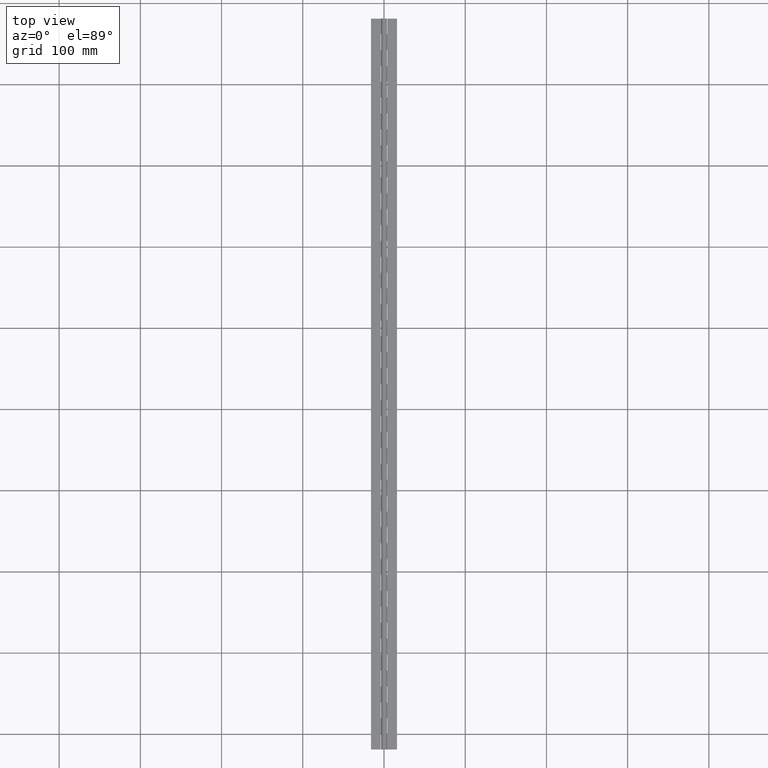
[diagram: clean part render]
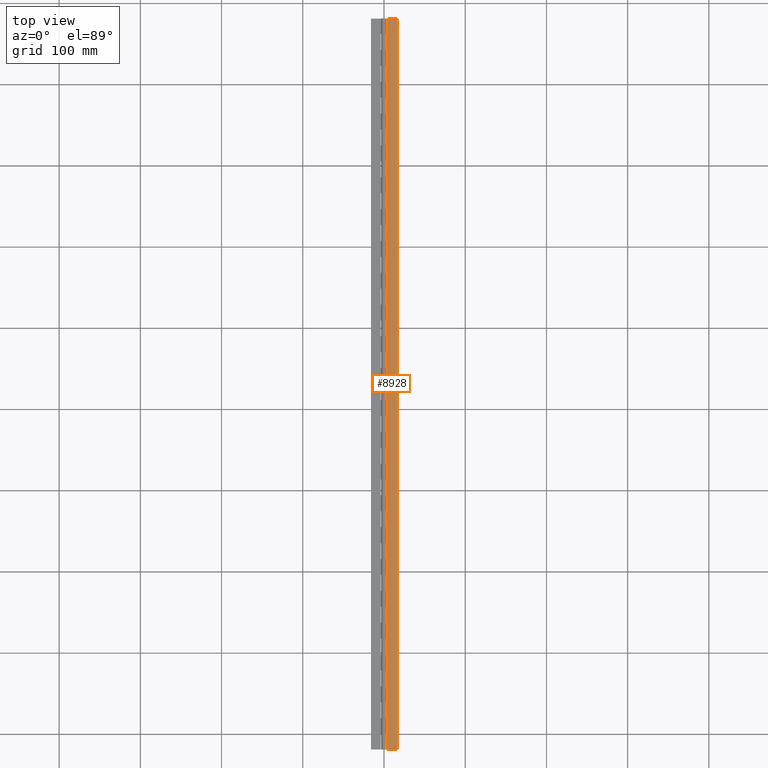
[diagram: same view with one face highlighted and labeled with its STEP entity id]
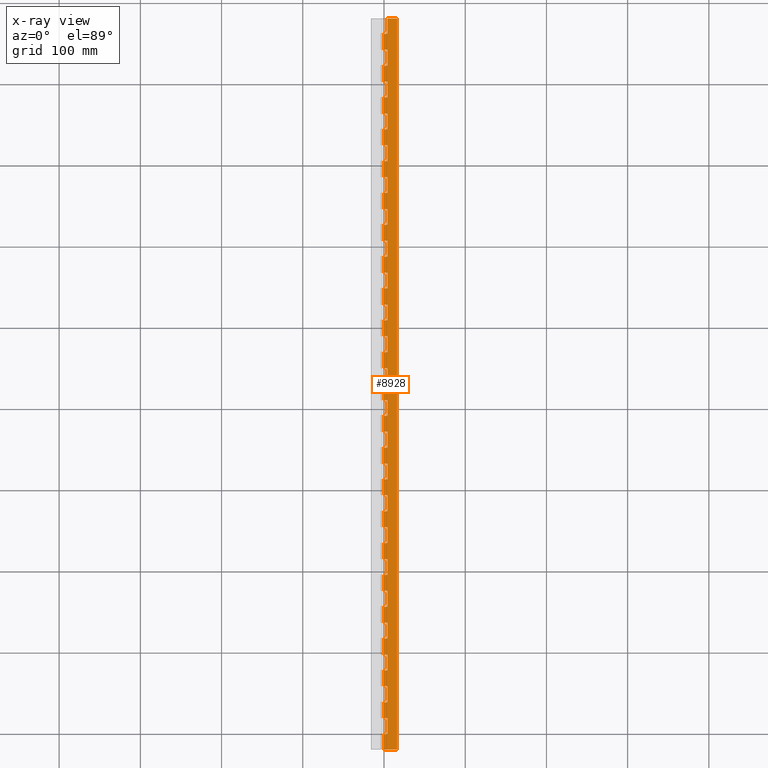
[diagram: x-ray of the same camera — body ghosted, the highlighted face saturated]
A machine part, top view. The second image highlights one B-rep face of the part: STEP entity #8928.
The next image is the same camera in x-ray: the body ghosted, the highlighted face saturated — about 0% of this face is hidden behind the body in this view.
In plain terms, the highlighted planar face has unit normal (-0, 0, -1).
Its self-contained STEP definition (entity closure, byte-faithful):
#41 = VERTEX_POINT ( 'NONE', #8592 ) ;
#58 = VERTEX_POINT ( 'NONE', #480 ) ;
#86 = VECTOR ( 'NONE', #7670, 1000.000000000000000 ) ;
#90 = LINE ( 'NONE', #1574, #9601 ) ;
#121 = EDGE_CURVE ( 'NONE', #3700, #7614, #829, .T. ) ;
#122 = LINE ( 'NONE', #9205, #4140 ) ;
#133 = ORIENTED_EDGE ( 'NONE', *, *, #1622, .T. ) ;
#159 = LINE ( 'NONE', #1134, #5957 ) ;
#166 = CARTESIAN_POINT ( 'NONE',  ( 2.143125705451388300E-016, 803.6000000000001400, -1.750002187502756900 ) ) ;
#193 = EDGE_CURVE ( 'NONE', #6470, #8513, #9643, .T. ) ;
#216 = CARTESIAN_POINT ( 'NONE',  ( 4.000000000000000000, 411.6000000000000800, -1.750002187502757200 ) ) ;
#234 = VECTOR ( 'NONE', #1967, 1000.000000000000000 ) ;
#242 = LINE ( 'NONE', #8952, #6043 ) ;
#243 = VERTEX_POINT ( 'NONE', #9301 ) ;
#247 = VERTEX_POINT ( 'NONE', #9220 ) ;
#248 = VECTOR ( 'NONE', #3665, 1000.000000000000000 ) ;
#265 = ORIENTED_EDGE ( 'NONE', *, *, #3986, .T. ) ;
#272 = CARTESIAN_POINT ( 'NONE',  ( 4.000000000000000000, 686.0000000000000000, -1.750002187502757200 ) ) ;
#280 = CARTESIAN_POINT ( 'NONE',  ( 0.0000000000000000000, 784.0000000000001100, -1.750002187502756900 ) ) ;
#287 = EDGE_CURVE ( 'NONE', #6977, #1509, #2966, .T. ) ;
#293 = CARTESIAN_POINT ( 'NONE',  ( 2.143125705451388300E-016, 686.0000000000000000, -1.750002187502756900 ) ) ;
#302 = VERTEX_POINT ( 'NONE', #4556 ) ;
#333 = LINE ( 'NONE', #9154, #7858 ) ;
#340 = CARTESIAN_POINT ( 'NONE',  ( 16.00000000000000000, -18.80000000000000100, -1.750002187502757400 ) ) ;
#386 = VECTOR ( 'NONE', #4124, 1000.000000000000000 ) ;
#394 = VERTEX_POINT ( 'NONE', #4043 ) ;
#395 = EDGE_CURVE ( 'NONE', #4336, #1188, #242, .T. ) ;
#399 = CARTESIAN_POINT ( 'NONE',  ( 3.999999999999996400, 666.4000000000000900, -1.750002187502756900 ) ) ;
#405 = VERTEX_POINT ( 'NONE', #6868 ) ;
#409 = CARTESIAN_POINT ( 'NONE',  ( 3.999999999999996400, 0.0000000000000000000, -1.750002187502756900 ) ) ;
#411 = CARTESIAN_POINT ( 'NONE',  ( 2.143134577426118000E-016, 862.3999999999999800, -1.750002187502757400 ) ) ;
#428 = LINE ( 'NONE', #280, #8192 ) ;
#442 = VECTOR ( 'NONE', #9223, 1000.000000000000000 ) ;
#449 = VERTEX_POINT ( 'NONE', #8540 ) ;
#456 = CARTESIAN_POINT ( 'NONE',  ( 4.000000000000038200, 862.3999999999999800, -1.750002187502757200 ) ) ;
#465 = LINE ( 'NONE', #4994, #7994 ) ;
#480 = CARTESIAN_POINT ( 'NONE',  ( 4.000000000000000000, 529.2000000000000500, -1.750002187502757200 ) ) ;
#482 = VERTEX_POINT ( 'NONE', #7428 ) ;
#500 = LINE ( 'NONE', #1350, #8267 ) ;
#524 = VERTEX_POINT ( 'NONE', #7082 ) ;
#529 = CARTESIAN_POINT ( 'NONE',  ( 3.999999999999996400, 509.6000000000000800, -1.750002187502756900 ) ) ;
#540 = EDGE_CURVE ( 'NONE', #2277, #405, #820, .T. ) ;
#557 = DIRECTION ( 'NONE',  ( -1.000000000000000000, 0.0000000000000000000, 2.710505431213761400E-017 ) ) ;
#588 = DIRECTION ( 'NONE',  ( -1.770125995894701000E-016, -1.000000000000000000, 4.797936125805255600E-033 ) ) ;
#599 = VECTOR ( 'NONE', #3216, 1000.000000000000000 ) ;
#600 = VERTEX_POINT ( 'NONE', #3016 ) ;
#651 = CARTESIAN_POINT ( 'NONE',  ( 2.143125705451388300E-016, 97.99999999999997200, -1.750002187502756900 ) ) ;
#668 = EDGE_CURVE ( 'NONE', #3999, #5528, #1661, .T. ) ;
#678 = DIRECTION ( 'NONE',  ( -1.770125995894701000E-016, -1.000000000000000000, 4.797936125805255600E-033 ) ) ;
#680 = VECTOR ( 'NONE', #3155, 1000.000000000000000 ) ;
#690 = VECTOR ( 'NONE', #5282, 1000.000000000000000 ) ;
#719 = DIRECTION ( 'NONE',  ( -1.770125995894701000E-016, -1.000000000000000000, 4.797936125805255600E-033 ) ) ;
#720 = VERTEX_POINT ( 'NONE', #9032 ) ;
#727 = VERTEX_POINT ( 'NONE', #5880 ) ;
#732 = LINE ( 'NONE', #4354, #4538 ) ;
#750 = EDGE_CURVE ( 'NONE', #449, #6405, #8825, .T. ) ;
#757 = CARTESIAN_POINT ( 'NONE',  ( 4.000000000000000000, 862.3999999999999800, -1.750002187502757200 ) ) ;
#761 = VERTEX_POINT ( 'NONE', #8870 ) ;
#782 = VECTOR ( 'NONE', #7273, 1000.000000000000000 ) ;
#805 = CARTESIAN_POINT ( 'NONE',  ( 2.143134577426118000E-016, 862.3999999999999800, -1.750002187502757400 ) ) ;
#807 = VECTOR ( 'NONE', #2569, 1000.000000000000000 ) ;
#820 = LINE ( 'NONE', #4459, #6383 ) ;
#829 = LINE ( 'NONE', #2604, #6391 ) ;
#837 = EDGE_CURVE ( 'NONE', #3771, #58, #5929, .T. ) ;
#863 = CARTESIAN_POINT ( 'NONE',  ( 3.999999999999996400, 705.6000000000001400, -1.750002187502756900 ) ) ;
#875 = EDGE_CURVE ( 'NONE', #7614, #5269, #1426, .T. ) ;
#896 = VECTOR ( 'NONE', #8204, 1000.000000000000000 ) ;
#914 = VECTOR ( 'NONE', #7071, 1000.000000000000000 ) ;
#924 = VERTEX_POINT ( 'NONE', #8626 ) ;
#957 = VERTEX_POINT ( 'NONE', #8597 ) ;
#960 = CARTESIAN_POINT ( 'NONE',  ( 4.000000000000000000, 19.60000000000000100, -1.750002187502757200 ) ) ;
#978 = VERTEX_POINT ( 'NONE', #1813 ) ;
#982 = DIRECTION ( 'NONE',  ( 1.000000000000000000, 0.0000000000000000000, -2.710505431213761400E-017 ) ) ;
#1034 = VECTOR ( 'NONE', #3896, 1000.000000000000000 ) ;
#1043 = LINE ( 'NONE', #5637, #8803 ) ;
#1046 = DIRECTION ( 'NONE',  ( -1.770125995894701000E-016, -1.000000000000000000, 4.797936125805255600E-033 ) ) ;
#1054 = CARTESIAN_POINT ( 'NONE',  ( 0.0000000000000000000, 509.6000000000000800, -1.750002187502756900 ) ) ;
#1059 = CARTESIAN_POINT ( 'NONE',  ( 0.0000000000000000000, 411.6000000000000800, -1.750002187502756900 ) ) ;
#1071 = CARTESIAN_POINT ( 'NONE',  ( 4.000000000000000000, 254.8000000000000400, -1.750002187502757200 ) ) ;
#1076 = VERTEX_POINT ( 'NONE', #9166 ) ;
#1100 = DIRECTION ( 'NONE',  ( -1.000000000000000000, 0.0000000000000000000, 2.710505431213761400E-017 ) ) ;
#1134 = CARTESIAN_POINT ( 'NONE',  ( 0.0000000000000000000, 176.4000000000000100, -1.750002187502756900 ) ) ;
#1146 = DIRECTION ( 'NONE',  ( -1.000000000000000000, 0.0000000000000000000, 2.710505431213761400E-017 ) ) ;
#1147 = ORIENTED_EDGE ( 'NONE', *, *, #2010, .T. ) ;
#1152 = LINE ( 'NONE', #8894, #6943 ) ;
#1158 = LINE ( 'NONE', #3949, #8926 ) ;
#1173 = CARTESIAN_POINT ( 'NONE',  ( 16.00000000000000000, -18.80000000000000100, -1.750002187502757400 ) ) ;
#1174 = ORIENTED_EDGE ( 'NONE', *, *, #5268, .T. ) ;
#1188 = VERTEX_POINT ( 'NONE', #7669 ) ;
#1202 = ORIENTED_EDGE ( 'NONE', *, *, #7270, .T. ) ;
#1211 = ORIENTED_EDGE ( 'NONE', *, *, #121, .T. ) ;
#1215 = DIRECTION ( 'NONE',  ( 1.000000000000000000, 0.0000000000000000000, -2.710505431213761400E-017 ) ) ;
#1230 = DIRECTION ( 'NONE',  ( -2.710505431213761400E-017, 0.0000000000000000000, -1.000000000000000000 ) ) ;
#1238 = CARTESIAN_POINT ( 'NONE',  ( 2.143125705451388300E-016, 333.2000000000000500, -1.750002187502756900 ) ) ;
#1244 = ORIENTED_EDGE ( 'NONE', *, *, #7974, .T. ) ;
#1251 = VERTEX_POINT ( 'NONE', #5850 ) ;
#1254 = CARTESIAN_POINT ( 'NONE',  ( 3.999999999999996400, 823.2000000000001600, -1.750002187502756900 ) ) ;
#1257 = CARTESIAN_POINT ( 'NONE',  ( 2.143134577426118000E-016, 862.3999999999999800, -1.750002187502757400 ) ) ;
#1258 = ORIENTED_EDGE ( 'NONE', *, *, #540, .T. ) ;
#1264 = CARTESIAN_POINT ( 'NONE',  ( 0.0000000000000000000, 372.4000000000000900, -1.750002187502756900 ) ) ;
#1279 = ORIENTED_EDGE ( 'NONE', *, *, #9015, .T. ) ;
#1308 = ORIENTED_EDGE ( 'NONE', *, *, #1606, .T. ) ;
#1350 = CARTESIAN_POINT ( 'NONE',  ( 4.000000000000128800, 862.3999999999999800, -1.750002187502757200 ) ) ;
#1384 = VECTOR ( 'NONE', #9466, 1000.000000000000000 ) ;
#1393 = ORIENTED_EDGE ( 'NONE', *, *, #193, .T. ) ;
#1399 = VECTOR ( 'NONE', #6586, 1000.000000000000000 ) ;
#1404 = LINE ( 'NONE', #6224, #6716 ) ;
#1410 = CARTESIAN_POINT ( 'NONE',  ( 2.143125705451388300E-016, 666.4000000000000900, -1.750002187502756900 ) ) ;
#1423 = VERTEX_POINT ( 'NONE', #8068 ) ;
#1426 = LINE ( 'NONE', #5847, #3445 ) ;
#1457 = CARTESIAN_POINT ( 'NONE',  ( 0.0000000000000000000, 803.6000000000001400, -1.750002187502756900 ) ) ;
#1458 = EDGE_CURVE ( 'NONE', #4065, #1956, #6270, .T. ) ;
#1470 = EDGE_CURVE ( 'NONE', #1821, #4065, #6034, .T. ) ;
#1474 = EDGE_CURVE ( 'NONE', #5800, #5591, #8221, .T. ) ;
#1475 = CARTESIAN_POINT ( 'NONE',  ( 3.999999999999996400, 117.6000000000000100, -1.750002187502756900 ) ) ;
#1509 = VERTEX_POINT ( 'NONE', #409 ) ;
#1512 = VECTOR ( 'NONE', #7526, 1000.000000000000000 ) ;
#1513 = DIRECTION ( 'NONE',  ( 1.000000000000000000, 0.0000000000000000000, -2.710505431213761400E-017 ) ) ;
#1518 = CARTESIAN_POINT ( 'NONE',  ( 2.143134577426118000E-016, 862.3999999999999800, -1.750002187502757400 ) ) ;
#1528 = LINE ( 'NONE', #7239, #8797 ) ;
#1561 = CARTESIAN_POINT ( 'NONE',  ( 2.143125705451388300E-016, 470.4000000000000300, -1.750002187502756900 ) ) ;
#1564 = VERTEX_POINT ( 'NONE', #7876 ) ;
#1574 = CARTESIAN_POINT ( 'NONE',  ( 0.0000000000000000000, 58.79999999999996200, -1.750002187502756900 ) ) ;
#1579 = EDGE_CURVE ( 'NONE', #3721, #8358, #1043, .T. ) ;
#1586 = DIRECTION ( 'NONE',  ( -1.770125995894701000E-016, -1.000000000000000000, 4.797936125805255600E-033 ) ) ;
#1590 = ORIENTED_EDGE ( 'NONE', *, *, #4005, .T. ) ;
#1606 = EDGE_CURVE ( 'NONE', #8190, #3613, #2824, .T. ) ;
#1613 = CARTESIAN_POINT ( 'NONE',  ( 4.000000000000094100, 862.3999999999999800, -1.750002187502757200 ) ) ;
#1622 = EDGE_CURVE ( 'NONE', #2367, #8038, #3068, .T. ) ;
#1661 = LINE ( 'NONE', #2057, #9072 ) ;
#1676 = CARTESIAN_POINT ( 'NONE',  ( 4.000000000000072800, 862.3999999999999800, -1.750002187502757200 ) ) ;
#1691 = DIRECTION ( 'NONE',  ( -0.0000000000000000000, -1.000000000000000000, -0.0000000000000000000 ) ) ;
#1693 = VERTEX_POINT ( 'NONE', #5492 ) ;
#1703 = ORIENTED_EDGE ( 'NONE', *, *, #5733, .T. ) ;
#1715 = ORIENTED_EDGE ( 'NONE', *, *, #4815, .T. ) ;
#1721 = CARTESIAN_POINT ( 'NONE',  ( 2.143134577426118000E-016, 862.3999999999999800, -1.750002187502757400 ) ) ;
#1730 = VERTEX_POINT ( 'NONE', #6216 ) ;
#1748 = LINE ( 'NONE', #5863, #5540 ) ;
#1780 = LINE ( 'NONE', #5984, #7548 ) ;
#1792 = CARTESIAN_POINT ( 'NONE',  ( 4.000000000000000000, 842.8000000000000700, -1.750002187502757200 ) ) ;
#1804 = EDGE_CURVE ( 'NONE', #5528, #6164, #1152, .T. ) ;
#1813 = CARTESIAN_POINT ( 'NONE',  ( 4.000000000000000000, 176.4000000000000300, -1.750002187502757200 ) ) ;
#1821 = VERTEX_POINT ( 'NONE', #6791 ) ;
#1837 = CARTESIAN_POINT ( 'NONE',  ( 4.000000000000142100, 862.3999999999999800, -1.750002187502757200 ) ) ;
#1838 = EDGE_CURVE ( 'NONE', #8515, #9399, #4726, .T. ) ;
#1871 = DIRECTION ( 'NONE',  ( 1.000000000000000000, 0.0000000000000000000, -2.710505431213761400E-017 ) ) ;
#1896 = VECTOR ( 'NONE', #9234, 1000.000000000000000 ) ;
#1922 = VERTEX_POINT ( 'NONE', #166 ) ;
#1923 = LINE ( 'NONE', #6431, #9677 ) ;
#1926 = ORIENTED_EDGE ( 'NONE', *, *, #5866, .T. ) ;
#1956 = VERTEX_POINT ( 'NONE', #6336 ) ;
#1957 = ORIENTED_EDGE ( 'NONE', *, *, #7839, .T. ) ;
#1967 = DIRECTION ( 'NONE',  ( -0.0000000000000000000, -1.000000000000000000, -0.0000000000000000000 ) ) ;
#1969 = VECTOR ( 'NONE', #8977, 1000.000000000000000 ) ;
#1973 = DIRECTION ( 'NONE',  ( -1.000000000000000000, 0.0000000000000000000, 2.710505431213761400E-017 ) ) ;
#1975 = ORIENTED_EDGE ( 'NONE', *, *, #3573, .T. ) ;
#2002 = CARTESIAN_POINT ( 'NONE',  ( 2.143134577426118000E-016, 862.3999999999999800, -1.750002187502757400 ) ) ;
#2010 = EDGE_CURVE ( 'NONE', #9253, #1821, #5053, .T. ) ;
#2011 = LINE ( 'NONE', #1059, #9752 ) ;
#2022 = VECTOR ( 'NONE', #9655, 1000.000000000000000 ) ;
#2057 = CARTESIAN_POINT ( 'NONE',  ( 2.143134577426118000E-016, 862.3999999999999800, -1.750002187502757400 ) ) ;
#2092 = DIRECTION ( 'NONE',  ( -0.0000000000000000000, -1.000000000000000000, -0.0000000000000000000 ) ) ;
#2101 = LINE ( 'NONE', #3869, #86 ) ;
#2118 = CARTESIAN_POINT ( 'NONE',  ( 2.143134577426118000E-016, 862.3999999999999800, -1.750002187502757400 ) ) ;
#2147 = DIRECTION ( 'NONE',  ( -0.0000000000000000000, -1.000000000000000000, -0.0000000000000000000 ) ) ;
#2154 = CARTESIAN_POINT ( 'NONE',  ( 4.000000000000100400, 862.3999999999999800, -1.750002187502757200 ) ) ;
#2173 = CARTESIAN_POINT ( 'NONE',  ( 4.000000000000000000, 98.00000000000001400, -1.750002187502757200 ) ) ;
#2177 = EDGE_CURVE ( 'NONE', #1251, #243, #4875, .T. ) ;
#2181 = CARTESIAN_POINT ( 'NONE',  ( 4.000000000000000000, 764.4000000000000900, -1.750002187502757200 ) ) ;
#2219 = ORIENTED_EDGE ( 'NONE', *, *, #3965, .T. ) ;
#2231 = ORIENTED_EDGE ( 'NONE', *, *, #875, .T. ) ;
#2277 = VERTEX_POINT ( 'NONE', #9170 ) ;
#2294 = DIRECTION ( 'NONE',  ( -0.0000000000000000000, -1.000000000000000000, -0.0000000000000000000 ) ) ;
#2337 = CARTESIAN_POINT ( 'NONE',  ( 4.000000000000003600, 862.3999999999999800, -1.750002187502757200 ) ) ;
#2346 = CARTESIAN_POINT ( 'NONE',  ( 2.143125705451388300E-016, 313.5999999999999700, -1.750002187502756900 ) ) ;
#2367 = VERTEX_POINT ( 'NONE', #272 ) ;
#2391 = VECTOR ( 'NONE', #7161, 1000.000000000000000 ) ;
#2417 = CARTESIAN_POINT ( 'NONE',  ( 2.143125705451388300E-016, 78.40000000000002000, -1.750002187502756900 ) ) ;
#2434 = EDGE_CURVE ( 'NONE', #3768, #600, #6413, .T. ) ;
#2443 = EDGE_CURVE ( 'NONE', #1509, #7331, #8391, .T. ) ;
#2467 = EDGE_CURVE ( 'NONE', #7389, #978, #159, .T. ) ;
#2469 = LINE ( 'NONE', #3980, #442 ) ;
#2488 = EDGE_CURVE ( 'NONE', #8761, #3768, #1923, .T. ) ;
#2493 = VECTOR ( 'NONE', #6423, 1000.000000000000000 ) ;
#2499 = DIRECTION ( 'NONE',  ( 1.000000000000000000, 0.0000000000000000000, -2.710505431213761400E-017 ) ) ;
#2505 = LINE ( 'NONE', #2835, #6287 ) ;
#2507 = ORIENTED_EDGE ( 'NONE', *, *, #668, .T. ) ;
#2537 = EDGE_CURVE ( 'NONE', #7815, #6171, #9432, .T. ) ;
#2569 = DIRECTION ( 'NONE',  ( -1.770125995894701000E-016, -1.000000000000000000, 4.797936125805255600E-033 ) ) ;
#2578 = VECTOR ( 'NONE', #1691, 1000.000000000000000 ) ;
#2589 = DIRECTION ( 'NONE',  ( -1.000000000000000000, 0.0000000000000000000, 2.710505431213761400E-017 ) ) ;
#2593 = CARTESIAN_POINT ( 'NONE',  ( 4.000000000000000000, 862.4000000000000900, -1.750002187502756900 ) ) ;
#2604 = CARTESIAN_POINT ( 'NONE',  ( 2.143134577426118000E-016, 862.3999999999999800, -1.750002187502757400 ) ) ;
#2612 = VECTOR ( 'NONE', #6784, 1000.000000000000000 ) ;
#2640 = ORIENTED_EDGE ( 'NONE', *, *, #6817, .T. ) ;
#2642 = EDGE_CURVE ( 'NONE', #1564, #302, #732, .T. ) ;
#2651 = CARTESIAN_POINT ( 'NONE',  ( 4.000000000000000000, 803.6000000000001400, -1.750002187502757200 ) ) ;
#2653 = EDGE_CURVE ( 'NONE', #4650, #5369, #500, .T. ) ;
#2663 = EDGE_CURVE ( 'NONE', #5591, #1922, #6306, .T. ) ;
#2679 = ORIENTED_EDGE ( 'NONE', *, *, #6479, .T. ) ;
#2691 = ORIENTED_EDGE ( 'NONE', *, *, #6527, .T. ) ;
#2694 = VECTOR ( 'NONE', #2499, 1000.000000000000000 ) ;
#2695 = EDGE_CURVE ( 'NONE', #9368, #4650, #8026, .T. ) ;
#2699 = CARTESIAN_POINT ( 'NONE',  ( 2.143134577426118000E-016, 862.3999999999999800, -1.750002187502757400 ) ) ;
#2701 = ORIENTED_EDGE ( 'NONE', *, *, #4520, .T. ) ;
#2714 = VECTOR ( 'NONE', #6554, 1000.000000000000000 ) ;
#2736 = VERTEX_POINT ( 'NONE', #6500 ) ;
#2737 = ORIENTED_EDGE ( 'NONE', *, *, #1804, .T. ) ;
#2746 = VERTEX_POINT ( 'NONE', #9457 ) ;
#2752 = DIRECTION ( 'NONE',  ( -0.0000000000000000000, -1.000000000000000000, -0.0000000000000000000 ) ) ;
#2757 = VECTOR ( 'NONE', #3814, 1000.000000000000000 ) ;
#2768 = VERTEX_POINT ( 'NONE', #5786 ) ;
#2779 = ORIENTED_EDGE ( 'NONE', *, *, #4297, .T. ) ;
#2800 = VECTOR ( 'NONE', #7246, 1000.000000000000000 ) ;
#2801 = DIRECTION ( 'NONE',  ( -1.770125995894701000E-016, -1.000000000000000000, 4.797936125805255600E-033 ) ) ;
#2824 = LINE ( 'NONE', #1837, #807 ) ;
#2835 = CARTESIAN_POINT ( 'NONE',  ( 4.000000000000058600, 862.3999999999999800, -1.750002187502757200 ) ) ;
#2851 = ORIENTED_EDGE ( 'NONE', *, *, #3619, .T. ) ;
#2859 = CARTESIAN_POINT ( 'NONE',  ( 2.143125705451388300E-016, 607.6000000000000200, -1.750002187502756900 ) ) ;
#2861 = DIRECTION ( 'NONE',  ( -1.000000000000000000, 0.0000000000000000000, 2.710505431213761400E-017 ) ) ;
#2898 = CARTESIAN_POINT ( 'NONE',  ( 0.0000000000000000000, 137.1999999999999900, -1.750002187502756900 ) ) ;
#2914 = VERTEX_POINT ( 'NONE', #651 ) ;
#2944 = VECTOR ( 'NONE', #982, 1000.000000000000000 ) ;
#2947 = LINE ( 'NONE', #3659, #5431 ) ;
#2957 = DIRECTION ( 'NONE',  ( -1.770125995894701000E-016, -1.000000000000000000, 4.797936125805255600E-033 ) ) ;
#2966 = LINE ( 'NONE', #3779, #7430 ) ;
#2980 = CARTESIAN_POINT ( 'NONE',  ( 4.000000000000107500, 862.3999999999999800, -1.750002187502757200 ) ) ;
#3009 = VERTEX_POINT ( 'NONE', #6855 ) ;
#3015 = CARTESIAN_POINT ( 'NONE',  ( 2.143134577426118000E-016, 862.3999999999999800, -1.750002187502757400 ) ) ;
#3016 = CARTESIAN_POINT ( 'NONE',  ( 2.143125705451388300E-016, 58.79999999999996200, -1.750002187502756900 ) ) ;
#3023 = DIRECTION ( 'NONE',  ( 1.000000000000000000, 0.0000000000000000000, -2.710505431213761400E-017 ) ) ;
#3025 = VERTEX_POINT ( 'NONE', #2346 ) ;
#3029 = ORIENTED_EDGE ( 'NONE', *, *, #7862, .T. ) ;
#3034 = VERTEX_POINT ( 'NONE', #4640 ) ;
#3062 = ORIENTED_EDGE ( 'NONE', *, *, #3290, .T. ) ;
#3068 = LINE ( 'NONE', #5585, #4841 ) ;
#3118 = ORIENTED_EDGE ( 'NONE', *, *, #287, .T. ) ;
#3123 = ORIENTED_EDGE ( 'NONE', *, *, #837, .T. ) ;
#3128 = EDGE_CURVE ( 'NONE', #8147, #2736, #6981, .T. ) ;
#3135 = ORIENTED_EDGE ( 'NONE', *, *, #1838, .T. ) ;
#3155 = DIRECTION ( 'NONE',  ( 1.000000000000000000, 0.0000000000000000000, -2.710505431213761400E-017 ) ) ;
#3201 = VERTEX_POINT ( 'NONE', #293 ) ;
#3216 = DIRECTION ( 'NONE',  ( -1.000000000000000000, 0.0000000000000000000, 2.710505431213761400E-017 ) ) ;
#3218 = ORIENTED_EDGE ( 'NONE', *, *, #2488, .T. ) ;
#3225 = ORIENTED_EDGE ( 'NONE', *, *, #4918, .T. ) ;
#3285 = DIRECTION ( 'NONE',  ( 1.000000000000000000, 0.0000000000000000000, -2.710505431213761400E-017 ) ) ;
#3288 = VECTOR ( 'NONE', #2294, 1000.000000000000000 ) ;
#3290 = EDGE_CURVE ( 'NONE', #9135, #2914, #4396, .T. ) ;
#3291 = VECTOR ( 'NONE', #8908, 1000.000000000000000 ) ;
#3295 = ORIENTED_EDGE ( 'NONE', *, *, #2443, .T. ) ;
#3298 = DIRECTION ( 'NONE',  ( -0.0000000000000000000, -1.000000000000000000, -0.0000000000000000000 ) ) ;
#3302 = VECTOR ( 'NONE', #1586, 1000.000000000000000 ) ;
#3363 = DIRECTION ( 'NONE',  ( 1.000000000000000000, 0.0000000000000000000, -2.710505431213761400E-017 ) ) ;
#3379 = DIRECTION ( 'NONE',  ( -0.0000000000000000000, -1.000000000000000000, -0.0000000000000000000 ) ) ;
#3389 = ORIENTED_EDGE ( 'NONE', *, *, #6621, .T. ) ;
#3419 = DIRECTION ( 'NONE',  ( -1.000000000000000000, 0.0000000000000000000, 2.710505431213761400E-017 ) ) ;
#3424 = ORIENTED_EDGE ( 'NONE', *, *, #7550, .T. ) ;
#3426 = LINE ( 'NONE', #8788, #1399 ) ;
#3440 = VECTOR ( 'NONE', #4869, 1000.000000000000000 ) ;
#3445 = VECTOR ( 'NONE', #6557, 1000.000000000000000 ) ;
#3446 = ORIENTED_EDGE ( 'NONE', *, *, #8459, .T. ) ;
#3453 = ORIENTED_EDGE ( 'NONE', *, *, #9059, .T. ) ;
#3503 = DIRECTION ( 'NONE',  ( -1.770125995894701000E-016, -1.000000000000000000, 4.797936125805255600E-033 ) ) ;
#3506 = EDGE_CURVE ( 'NONE', #58, #9622, #2505, .T. ) ;
#3525 = LINE ( 'NONE', #8130, #9028 ) ;
#3530 = VERTEX_POINT ( 'NONE', #9584 ) ;
#3552 = EDGE_CURVE ( 'NONE', #5269, #7857, #8001, .T. ) ;
#3570 = VECTOR ( 'NONE', #2589, 1000.000000000000000 ) ;
#3573 = EDGE_CURVE ( 'NONE', #1188, #247, #7781, .T. ) ;
#3587 = VERTEX_POINT ( 'NONE', #1410 ) ;
#3596 = ORIENTED_EDGE ( 'NONE', *, *, #2177, .T. ) ;
#3608 = ORIENTED_EDGE ( 'NONE', *, *, #3128, .T. ) ;
#3610 = EDGE_CURVE ( 'NONE', #1956, #7591, #1780, .T. ) ;
#3611 = ORIENTED_EDGE ( 'NONE', *, *, #4191, .T. ) ;
#3613 = VERTEX_POINT ( 'NONE', #6722 ) ;
#3619 = EDGE_CURVE ( 'NONE', #1922, #5726, #9292, .T. ) ;
#3622 = ORIENTED_EDGE ( 'NONE', *, *, #9675, .T. ) ;
#3623 = CARTESIAN_POINT ( 'NONE',  ( 2.143125705451388300E-016, 294.0000000000000600, -1.750002187502756900 ) ) ;
#3631 = LINE ( 'NONE', #9500, #1384 ) ;
#3659 = CARTESIAN_POINT ( 'NONE',  ( 2.143134577426118000E-016, 862.3999999999999800, -1.750002187502757400 ) ) ;
#3665 = DIRECTION ( 'NONE',  ( -1.770125995894701000E-016, -1.000000000000000000, 4.797936125805255600E-033 ) ) ;
#3679 = CARTESIAN_POINT ( 'NONE',  ( 2.143134577426118000E-016, -18.80000000000000100, -1.750002187502757400 ) ) ;
#3700 = VERTEX_POINT ( 'NONE', #6095 ) ;
#3703 = DIRECTION ( 'NONE',  ( 1.000000000000000000, 0.0000000000000000000, -2.710505431213761400E-017 ) ) ;
#3721 = VERTEX_POINT ( 'NONE', #4637 ) ;
#3751 = CARTESIAN_POINT ( 'NONE',  ( 0.0000000000000000000, 686.0000000000000000, -1.750002187502756900 ) ) ;
#3768 = VERTEX_POINT ( 'NONE', #2417 ) ;
#3771 = VERTEX_POINT ( 'NONE', #3941 ) ;
#3778 = EDGE_CURVE ( 'NONE', #8038, #3587, #122, .T. ) ;
#3779 = CARTESIAN_POINT ( 'NONE',  ( 4.000000000000149200, 862.3999999999999800, -1.750002187502757200 ) ) ;
#3784 = VECTOR ( 'NONE', #4105, 1000.000000000000000 ) ;
#3799 = ORIENTED_EDGE ( 'NONE', *, *, #2467, .T. ) ;
#3814 = DIRECTION ( 'NONE',  ( 1.000000000000000000, 0.0000000000000000000, -2.710505431213761400E-017 ) ) ;
#3828 = DIRECTION ( 'NONE',  ( 1.000000000000000000, 0.0000000000000000000, -2.710505431213761400E-017 ) ) ;
#3865 = DIRECTION ( 'NONE',  ( -0.0000000000000000000, -1.000000000000000000, -0.0000000000000000000 ) ) ;
#3869 = CARTESIAN_POINT ( 'NONE',  ( 0.0000000000000000000, 97.99999999999997200, -1.750002187502756900 ) ) ;
#3872 = ORIENTED_EDGE ( 'NONE', *, *, #2653, .T. ) ;
#3896 = DIRECTION ( 'NONE',  ( -1.000000000000000000, 0.0000000000000000000, 2.710505431213761400E-017 ) ) ;
#3900 = VECTOR ( 'NONE', #1215, 1000.000000000000000 ) ;
#3938 = CARTESIAN_POINT ( 'NONE',  ( 2.143134577426118000E-016, 862.3999999999999800, -1.750002187502757400 ) ) ;
#3941 = CARTESIAN_POINT ( 'NONE',  ( 2.143125705451388300E-016, 529.2000000000000500, -1.750002187502756900 ) ) ;
#3949 = CARTESIAN_POINT ( 'NONE',  ( 0.0000000000000000000, 548.8000000000000700, -1.750002187502756900 ) ) ;
#3965 = EDGE_CURVE ( 'NONE', #6164, #8503, #4741, .T. ) ;
#3968 = DIRECTION ( 'NONE',  ( -0.0000000000000000000, -1.000000000000000000, -0.0000000000000000000 ) ) ;
#3980 = CARTESIAN_POINT ( 'NONE',  ( 0.0000000000000000000, 333.2000000000000500, -1.750002187502756900 ) ) ;
#3984 = LINE ( 'NONE', #3015, #1969 ) ;
#3986 = EDGE_CURVE ( 'NONE', #6166, #3771, #8224, .T. ) ;
#3999 = VERTEX_POINT ( 'NONE', #4207 ) ;
#4001 = LINE ( 'NONE', #9022, #4228 ) ;
#4005 = EDGE_CURVE ( 'NONE', #302, #1730, #7992, .T. ) ;
#4010 = ORIENTED_EDGE ( 'NONE', *, *, #2537, .T. ) ;
#4039 = VERTEX_POINT ( 'NONE', #4248 ) ;
#4041 = ORIENTED_EDGE ( 'NONE', *, *, #9548, .T. ) ;
#4043 = CARTESIAN_POINT ( 'NONE',  ( 3.999999999999996400, 627.2000000000000500, -1.750002187502756900 ) ) ;
#4044 = VERTEX_POINT ( 'NONE', #1238 ) ;
#4065 = VERTEX_POINT ( 'NONE', #8755 ) ;
#4089 = ORIENTED_EDGE ( 'NONE', *, *, #7516, .T. ) ;
#4105 = DIRECTION ( 'NONE',  ( -1.000000000000000000, 0.0000000000000000000, 0.0000000000000000000 ) ) ;
#4124 = DIRECTION ( 'NONE',  ( -1.000000000000000000, 0.0000000000000000000, 2.710505431213761400E-017 ) ) ;
#4128 = LINE ( 'NONE', #4257, #3900 ) ;
#4140 = VECTOR ( 'NONE', #4727, 1000.000000000000000 ) ;
#4161 = CARTESIAN_POINT ( 'NONE',  ( 3.999999999999996400, 313.6000000000000200, -1.750002187502756900 ) ) ;
#4185 = DIRECTION ( 'NONE',  ( -0.0000000000000000000, -1.000000000000000000, -0.0000000000000000000 ) ) ;
#4189 = VERTEX_POINT ( 'NONE', #1173 ) ;
#4191 = EDGE_CURVE ( 'NONE', #3587, #1423, #9280, .T. ) ;
#4207 = CARTESIAN_POINT ( 'NONE',  ( 2.143125705451388300E-016, 784.0000000000001100, -1.750002187502756900 ) ) ;
#4219 = EDGE_CURVE ( 'NONE', #524, #3530, #4128, .T. ) ;
#4228 = VECTOR ( 'NONE', #6790, 1000.000000000000000 ) ;
#4239 = CARTESIAN_POINT ( 'NONE',  ( 0.0000000000000000000, 862.3999999999999800, -1.750002187502756900 ) ) ;
#4248 = CARTESIAN_POINT ( 'NONE',  ( 2.143125705451388300E-016, 274.4000000000000900, -1.750002187502756900 ) ) ;
#4257 = CARTESIAN_POINT ( 'NONE',  ( 0.0000000000000000000, 450.8000000000000700, -1.750002187502756900 ) ) ;
#4268 = CARTESIAN_POINT ( 'NONE',  ( 4.000000000000135000, 862.3999999999999800, -1.750002187502757200 ) ) ;
#4288 = VECTOR ( 'NONE', #2147, 1000.000000000000000 ) ;
#4297 = EDGE_CURVE ( 'NONE', #1730, #2746, #3426, .T. ) ;
#4305 = CARTESIAN_POINT ( 'NONE',  ( 4.000000000000024000, 862.3999999999999800, -1.750002187502757200 ) ) ;
#4313 = ORIENTED_EDGE ( 'NONE', *, *, #4342, .T. ) ;
#4316 = CARTESIAN_POINT ( 'NONE',  ( 0.0000000000000000000, 490.0000000000000600, -1.750002187502756900 ) ) ;
#4321 = ORIENTED_EDGE ( 'NONE', *, *, #9391, .T. ) ;
#4336 = VERTEX_POINT ( 'NONE', #3623 ) ;
#4342 = EDGE_CURVE ( 'NONE', #7331, #5950, #2947, .T. ) ;
#4353 = CARTESIAN_POINT ( 'NONE',  ( 3.999999999999996400, 78.40000000000000600, -1.750002187502756900 ) ) ;
#4354 = CARTESIAN_POINT ( 'NONE',  ( 0.0000000000000000000, 235.1999999999999600, -1.750002187502756900 ) ) ;
#4364 = LINE ( 'NONE', #4449, #8093 ) ;
#4396 = LINE ( 'NONE', #7919, #2391 ) ;
#4412 = CARTESIAN_POINT ( 'NONE',  ( 4.000000000000000000, 58.80000000000000400, -1.750002187502757200 ) ) ;
#4438 = ORIENTED_EDGE ( 'NONE', *, *, #9602, .T. ) ;
#4449 = CARTESIAN_POINT ( 'NONE',  ( 4.000000000000121700, 862.3999999999999800, -1.750002187502757200 ) ) ;
#4453 = CARTESIAN_POINT ( 'NONE',  ( 2.143125705451388300E-016, 705.6000000000001400, -1.750002187502756900 ) ) ;
#4459 = CARTESIAN_POINT ( 'NONE',  ( 0.0000000000000000000, 156.8000000000000400, -1.750002187502756900 ) ) ;
#4477 = ORIENTED_EDGE ( 'NONE', *, *, #4874, .T. ) ;
#4480 = LINE ( 'NONE', #7743, #2694 ) ;
#4485 = ORIENTED_EDGE ( 'NONE', *, *, #3610, .T. ) ;
#4511 = ORIENTED_EDGE ( 'NONE', *, *, #9683, .T. ) ;
#4520 = EDGE_CURVE ( 'NONE', #9399, #5800, #9741, .T. ) ;
#4523 = VERTEX_POINT ( 'NONE', #8336 ) ;
#4538 = VECTOR ( 'NONE', #6622, 1000.000000000000000 ) ;
#4556 = CARTESIAN_POINT ( 'NONE',  ( 2.143125705451388300E-016, 235.1999999999999600, -1.750002187502756900 ) ) ;
#4566 = EDGE_CURVE ( 'NONE', #6171, #3201, #333, .T. ) ;
#4585 = CARTESIAN_POINT ( 'NONE',  ( 4.000000000000000000, 646.8000000000000700, -1.750002187502757200 ) ) ;
#4627 = VERTEX_POINT ( 'NONE', #216 ) ;
#4637 = CARTESIAN_POINT ( 'NONE',  ( 3.999999999999996400, 470.4000000000000300, -1.750002187502756900 ) ) ;
#4640 = CARTESIAN_POINT ( 'NONE',  ( 2.143125705451388300E-016, 196.0000000000000600, -1.750002187502756900 ) ) ;
#4643 = ORIENTED_EDGE ( 'NONE', *, *, #7879, .T. ) ;
#4650 = VERTEX_POINT ( 'NONE', #5541 ) ;
#4656 = CARTESIAN_POINT ( 'NONE',  ( 3.999999999999996400, 392.0000000000000600, -1.750002187502756900 ) ) ;
#4686 = ORIENTED_EDGE ( 'NONE', *, *, #9221, .T. ) ;
#4689 = EDGE_CURVE ( 'NONE', #1076, #4915, #6934, .T. ) ;
#4726 = LINE ( 'NONE', #5452, #2944 ) ;
#4727 = DIRECTION ( 'NONE',  ( -1.000000000000000000, 0.0000000000000000000, 2.710505431213761400E-017 ) ) ;
#4741 = LINE ( 'NONE', #4910, #2493 ) ;
#4773 = CARTESIAN_POINT ( 'NONE',  ( 2.143125705451388300E-016, 842.8000000000000700, -1.750002187502756900 ) ) ;
#4789 = CARTESIAN_POINT ( 'NONE',  ( 0.0000000000000000000, 646.8000000000000700, -1.750002187502756900 ) ) ;
#4808 = DIRECTION ( 'NONE',  ( -1.000000000000000000, 0.0000000000000000000, 2.710505431213761400E-017 ) ) ;
#4815 = EDGE_CURVE ( 'NONE', #5369, #9135, #4001, .T. ) ;
#4822 = LINE ( 'NONE', #456, #2800 ) ;
#4826 = LINE ( 'NONE', #3938, #2578 ) ;
#4830 = EDGE_CURVE ( 'NONE', #243, #482, #7750, .T. ) ;
#4841 = VECTOR ( 'NONE', #7074, 1000.000000000000000 ) ;
#4856 = LINE ( 'NONE', #3751, #2612 ) ;
#4869 = DIRECTION ( 'NONE',  ( 1.000000000000000000, 0.0000000000000000000, -2.710505431213761400E-017 ) ) ;
#4874 = EDGE_CURVE ( 'NONE', #4039, #3009, #5286, .T. ) ;
#4875 = LINE ( 'NONE', #9034, #2757 ) ;
#4882 = VERTEX_POINT ( 'NONE', #9101 ) ;
#4885 = VECTOR ( 'NONE', #3379, 1000.000000000000000 ) ;
#4891 = EDGE_CURVE ( 'NONE', #4523, #8625, #5047, .T. ) ;
#4893 = CARTESIAN_POINT ( 'NONE',  ( 0.0000000000000000000, 0.0000000000000000000, -1.750002187502756900 ) ) ;
#4905 = ORIENTED_EDGE ( 'NONE', *, *, #1458, .T. ) ;
#4910 = CARTESIAN_POINT ( 'NONE',  ( 4.000000000000017800, 862.3999999999999800, -1.750002187502757200 ) ) ;
#4915 = VERTEX_POINT ( 'NONE', #9155 ) ;
#4917 = ORIENTED_EDGE ( 'NONE', *, *, #4830, .T. ) ;
#4918 = EDGE_CURVE ( 'NONE', #6405, #41, #4826, .T. ) ;
#4925 = CARTESIAN_POINT ( 'NONE',  ( 0.0000000000000000000, 274.4000000000000900, -1.750002187502756900 ) ) ;
#4927 = ORIENTED_EDGE ( 'NONE', *, *, #4689, .F. ) ;
#4944 = DIRECTION ( 'NONE',  ( -1.000000000000000000, 0.0000000000000000000, 2.710505431213761400E-017 ) ) ;
#4994 = CARTESIAN_POINT ( 'NONE',  ( 16.00000000000000000, 862.3999999999999800, -1.750002187502757400 ) ) ;
#5047 = LINE ( 'NONE', #1613, #8780 ) ;
#5052 = VERTEX_POINT ( 'NONE', #1071 ) ;
#5053 = LINE ( 'NONE', #5212, #1034 ) ;
#5068 = LINE ( 'NONE', #1257, #6601 ) ;
#5090 = VECTOR ( 'NONE', #3419, 1000.000000000000000 ) ;
#5133 = CARTESIAN_POINT ( 'NONE',  ( 0.0000000000000000000, 431.2000000000001000, -1.750002187502756900 ) ) ;
#5177 = DIRECTION ( 'NONE',  ( -1.770125995894701000E-016, -1.000000000000000000, 4.797936125805255600E-033 ) ) ;
#5194 = CARTESIAN_POINT ( 'NONE',  ( 2.143134577426118000E-016, 19.59999999999995200, -1.750002187502757400 ) ) ;
#5208 = ORIENTED_EDGE ( 'NONE', *, *, #750, .T. ) ;
#5209 = ORIENTED_EDGE ( 'NONE', *, *, #4891, .T. ) ;
#5212 = CARTESIAN_POINT ( 'NONE',  ( 0.0000000000000000000, 392.0000000000000600, -1.750002187502756900 ) ) ;
#5268 = EDGE_CURVE ( 'NONE', #3613, #720, #7570, .T. ) ;
#5269 = VERTEX_POINT ( 'NONE', #8854 ) ;
#5276 = ORIENTED_EDGE ( 'NONE', *, *, #8499, .T. ) ;
#5282 = DIRECTION ( 'NONE',  ( 0.0000000000000000000, -1.000000000000000000, 0.0000000000000000000 ) ) ;
#5286 = LINE ( 'NONE', #805, #9023 ) ;
#5355 = VERTEX_POINT ( 'NONE', #5194 ) ;
#5366 = ORIENTED_EDGE ( 'NONE', *, *, #2663, .T. ) ;
#5369 = VERTEX_POINT ( 'NONE', #1475 ) ;
#5372 = ORIENTED_EDGE ( 'NONE', *, *, #1474, .T. ) ;
#5382 = ORIENTED_EDGE ( 'NONE', *, *, #8668, .T. ) ;
#5431 = VECTOR ( 'NONE', #8892, 1000.000000000000000 ) ;
#5433 = CARTESIAN_POINT ( 'NONE',  ( 2.143125705451388300E-016, 764.4000000000000900, -1.750002187502756900 ) ) ;
#5447 = LINE ( 'NONE', #7098, #3440 ) ;
#5452 = CARTESIAN_POINT ( 'NONE',  ( 0.0000000000000000000, 842.8000000000000700, -1.750002187502756900 ) ) ;
#5464 = DIRECTION ( 'NONE',  ( -1.000000000000000000, 0.0000000000000000000, 2.710505431213761400E-017 ) ) ;
#5476 = DIRECTION ( 'NONE',  ( -1.770125995894701000E-016, -1.000000000000000000, 4.797936125805255600E-033 ) ) ;
#5492 = CARTESIAN_POINT ( 'NONE',  ( 3.999999999999996400, 784.0000000000001100, -1.750002187502756900 ) ) ;
#5528 = VERTEX_POINT ( 'NONE', #5433 ) ;
#5538 = VECTOR ( 'NONE', #719, 1000.000000000000000 ) ;
#5540 = VECTOR ( 'NONE', #2092, 1000.000000000000000 ) ;
#5541 = CARTESIAN_POINT ( 'NONE',  ( 4.000000000000000000, 137.2000000000000200, -1.750002187502757200 ) ) ;
#5583 = LINE ( 'NONE', #1054, #3570 ) ;
#5585 = CARTESIAN_POINT ( 'NONE',  ( 4.000000000000031100, 862.3999999999999800, -1.750002187502757200 ) ) ;
#5591 = VERTEX_POINT ( 'NONE', #9246 ) ;
#5637 = CARTESIAN_POINT ( 'NONE',  ( 0.0000000000000000000, 470.4000000000000300, -1.750002187502756900 ) ) ;
#5659 = DIRECTION ( 'NONE',  ( -0.0000000000000000000, -1.000000000000000000, -0.0000000000000000000 ) ) ;
#5660 = EDGE_CURVE ( 'NONE', #9622, #8147, #5583, .T. ) ;
#5677 = VECTOR ( 'NONE', #7592, 1000.000000000000000 ) ;
#5688 = VECTOR ( 'NONE', #9471, 1000.000000000000000 ) ;
#5691 = LINE ( 'NONE', #5858, #7674 ) ;
#5696 = CARTESIAN_POINT ( 'NONE',  ( 2.143125705451388300E-016, 352.8000000000001300, -1.750002187502756900 ) ) ;
#5718 = EDGE_CURVE ( 'NONE', #7857, #957, #8830, .T. ) ;
#5726 = VERTEX_POINT ( 'NONE', #2651 ) ;
#5733 = EDGE_CURVE ( 'NONE', #247, #4039, #6862, .T. ) ;
#5750 = VERTEX_POINT ( 'NONE', #5696 ) ;
#5762 = PLANE ( 'NONE',  #6626 ) ;
#5779 = ORIENTED_EDGE ( 'NONE', *, *, #2642, .T. ) ;
#5786 = CARTESIAN_POINT ( 'NONE',  ( 4.000000000000000000, 725.2000000000000500, -1.750002187502757200 ) ) ;
#5800 = VERTEX_POINT ( 'NONE', #1254 ) ;
#5812 = ORIENTED_EDGE ( 'NONE', *, *, #7673, .T. ) ;
#5816 = VECTOR ( 'NONE', #3968, 1000.000000000000000 ) ;
#5827 = VECTOR ( 'NONE', #3703, 1000.000000000000000 ) ;
#5846 = ORIENTED_EDGE ( 'NONE', *, *, #1579, .T. ) ;
#5847 = CARTESIAN_POINT ( 'NONE',  ( 0.0000000000000000000, 607.6000000000000200, -1.750002187502756900 ) ) ;
#5850 = CARTESIAN_POINT ( 'NONE',  ( 2.143125705451388300E-016, 568.3999999999999800, -1.750002187502756900 ) ) ;
#5858 = CARTESIAN_POINT ( 'NONE',  ( 0.0000000000000000000, 744.8000000000001800, -1.750002187502756900 ) ) ;
#5863 = CARTESIAN_POINT ( 'NONE',  ( 2.143134577426118000E-016, 862.3999999999999800, -1.750002187502757400 ) ) ;
#5864 = CARTESIAN_POINT ( 'NONE',  ( 3.999999999999996400, 352.8000000000000700, -1.750002187502756900 ) ) ;
#5866 = EDGE_CURVE ( 'NONE', #8503, #727, #5691, .T. ) ;
#5879 = CARTESIAN_POINT ( 'NONE',  ( 4.000000000000065700, 862.3999999999999800, -1.750002187502757200 ) ) ;
#5880 = CARTESIAN_POINT ( 'NONE',  ( 2.143125705451388300E-016, 744.8000000000001800, -1.750002187502756900 ) ) ;
#5929 = LINE ( 'NONE', #8757, #5688 ) ;
#5930 = ORIENTED_EDGE ( 'NONE', *, *, #5954, .T. ) ;
#5950 = VERTEX_POINT ( 'NONE', #3679 ) ;
#5954 = EDGE_CURVE ( 'NONE', #2746, #761, #8705, .T. ) ;
#5957 = VECTOR ( 'NONE', #1871, 1000.000000000000000 ) ;
#5984 = CARTESIAN_POINT ( 'NONE',  ( 4.000000000000087000, 862.3999999999999800, -1.750002187502757200 ) ) ;
#5996 = CARTESIAN_POINT ( 'NONE',  ( 2.143125705451388300E-016, 117.6000000000000400, -1.750002187502756900 ) ) ;
#6027 = VECTOR ( 'NONE', #6902, 1000.000000000000000 ) ;
#6034 = LINE ( 'NONE', #2002, #7988 ) ;
#6043 = VECTOR ( 'NONE', #3023, 1000.000000000000000 ) ;
#6065 = ORIENTED_EDGE ( 'NONE', *, *, #2434, .T. ) ;
#6095 = CARTESIAN_POINT ( 'NONE',  ( 2.143125705451388300E-016, 627.2000000000000500, -1.750002187502756900 ) ) ;
#6106 = ORIENTED_EDGE ( 'NONE', *, *, #6281, .T. ) ;
#6119 = CARTESIAN_POINT ( 'NONE',  ( 2.143125705451388300E-016, 176.4000000000000100, -1.750002187502756900 ) ) ;
#6164 = VERTEX_POINT ( 'NONE', #2181 ) ;
#6166 = VERTEX_POINT ( 'NONE', #9641 ) ;
#6171 = VERTEX_POINT ( 'NONE', #4453 ) ;
#6206 = CARTESIAN_POINT ( 'NONE',  ( 0.0000000000000000000, 254.8000000000000400, -1.750002187502756900 ) ) ;
#6212 = EDGE_CURVE ( 'NONE', #3201, #2367, #4856, .T. ) ;
#6214 = ORIENTED_EDGE ( 'NONE', *, *, #8100, .F. ) ;
#6216 = CARTESIAN_POINT ( 'NONE',  ( 2.143125705451388300E-016, 215.6000000000000200, -1.750002187502756900 ) ) ;
#6224 = CARTESIAN_POINT ( 'NONE',  ( 0.0000000000000000000, 627.2000000000000500, -1.750002187502756900 ) ) ;
#6256 = VECTOR ( 'NONE', #5476, 1000.000000000000000 ) ;
#6259 = VERTEX_POINT ( 'NONE', #4585 ) ;
#6270 = LINE ( 'NONE', #1264, #2714 ) ;
#6272 = VECTOR ( 'NONE', #4185, 1000.000000000000000 ) ;
#6281 = EDGE_CURVE ( 'NONE', #7591, #5750, #9637, .T. ) ;
#6287 = VECTOR ( 'NONE', #2801, 1000.000000000000000 ) ;
#6292 = ORIENTED_EDGE ( 'NONE', *, *, #9377, .T. ) ;
#6306 = LINE ( 'NONE', #7393, #4288 ) ;
#6336 = CARTESIAN_POINT ( 'NONE',  ( 4.000000000000000000, 372.4000000000000900, -1.750002187502757200 ) ) ;
#6349 = LINE ( 'NONE', #4305, #782 ) ;
#6383 = VECTOR ( 'NONE', #7575, 1000.000000000000000 ) ;
#6391 = VECTOR ( 'NONE', #3298, 1000.000000000000000 ) ;
#6405 = VERTEX_POINT ( 'NONE', #7006 ) ;
#6413 = LINE ( 'NONE', #8602, #4885 ) ;
#6416 = ORIENTED_EDGE ( 'NONE', *, *, #9116, .T. ) ;
#6423 = DIRECTION ( 'NONE',  ( -1.770125995894701000E-016, -1.000000000000000000, 4.797936125805255600E-033 ) ) ;
#6428 = EDGE_CURVE ( 'NONE', #1423, #6259, #8468, .T. ) ;
#6431 = CARTESIAN_POINT ( 'NONE',  ( 0.0000000000000000000, 78.40000000000002000, -1.750002187502756900 ) ) ;
#6456 = LINE ( 'NONE', #7028, #8905 ) ;
#6470 = VERTEX_POINT ( 'NONE', #2593 ) ;
#6479 = EDGE_CURVE ( 'NONE', #41, #4627, #2011, .T. ) ;
#6484 = ORIENTED_EDGE ( 'NONE', *, *, #4219, .T. ) ;
#6489 = VECTOR ( 'NONE', #3285, 1000.000000000000000 ) ;
#6491 = EDGE_CURVE ( 'NONE', #4189, #5950, #7993, .T. ) ;
#6500 = CARTESIAN_POINT ( 'NONE',  ( 2.143125705451388300E-016, 490.0000000000000600, -1.750002187502756900 ) ) ;
#6507 = ORIENTED_EDGE ( 'NONE', *, *, #395, .T. ) ;
#6516 = DIRECTION ( 'NONE',  ( -1.000000000000000000, 0.0000000000000000000, 2.710505431213761400E-017 ) ) ;
#6522 = DIRECTION ( 'NONE',  ( -1.000000000000000000, 0.0000000000000000000, 2.710505431213761400E-017 ) ) ;
#6527 = EDGE_CURVE ( 'NONE', #727, #4882, #9508, .T. ) ;
#6554 = DIRECTION ( 'NONE',  ( 1.000000000000000000, 0.0000000000000000000, -2.710505431213761400E-017 ) ) ;
#6557 = DIRECTION ( 'NONE',  ( 1.000000000000000000, 0.0000000000000000000, -2.710505431213761400E-017 ) ) ;
#6577 = VECTOR ( 'NONE', #3503, 1000.000000000000000 ) ;
#6586 = DIRECTION ( 'NONE',  ( 1.000000000000000000, 0.0000000000000000000, -2.710505431213761400E-017 ) ) ;
#6601 = VECTOR ( 'NONE', #7281, 1000.000000000000000 ) ;
#6621 = EDGE_CURVE ( 'NONE', #8513, #8515, #5068, .T. ) ;
#6622 = DIRECTION ( 'NONE',  ( -1.000000000000000000, 0.0000000000000000000, 2.710505431213761400E-017 ) ) ;
#6626 = AXIS2_PLACEMENT_3D ( 'NONE', #4239, #1230, #6516 ) ;
#6677 = ORIENTED_EDGE ( 'NONE', *, *, #9567, .T. ) ;
#6705 = FACE_OUTER_BOUND ( 'NONE', #8909, .T. ) ;
#6716 = VECTOR ( 'NONE', #8443, 1000.000000000000000 ) ;
#6722 = CARTESIAN_POINT ( 'NONE',  ( 3.999999999999996400, 39.20000000000000300, -1.750002187502756900 ) ) ;
#6740 = VECTOR ( 'NONE', #5177, 1000.000000000000000 ) ;
#6784 = DIRECTION ( 'NONE',  ( 1.000000000000000000, 0.0000000000000000000, -2.710505431213761400E-017 ) ) ;
#6790 = DIRECTION ( 'NONE',  ( -1.000000000000000000, 0.0000000000000000000, 2.710505431213761400E-017 ) ) ;
#6791 = CARTESIAN_POINT ( 'NONE',  ( 2.143125705451388300E-016, 392.0000000000000600, -1.750002187502756900 ) ) ;
#6817 = EDGE_CURVE ( 'NONE', #1076, #6470, #8677, .T. ) ;
#6841 = CARTESIAN_POINT ( 'NONE',  ( 0.0000000000000000000, 352.8000000000001300, -1.750002187502756900 ) ) ;
#6855 = CARTESIAN_POINT ( 'NONE',  ( 2.143125705451388300E-016, 254.8000000000000400, -1.750002187502756900 ) ) ;
#6862 = LINE ( 'NONE', #4925, #8589 ) ;
#6868 = CARTESIAN_POINT ( 'NONE',  ( 2.143125705451388300E-016, 156.8000000000000400, -1.750002187502756900 ) ) ;
#6900 = EDGE_CURVE ( 'NONE', #8358, #524, #7980, .T. ) ;
#6902 = DIRECTION ( 'NONE',  ( -0.0000000000000000000, -1.000000000000000000, -0.0000000000000000000 ) ) ;
#6927 = VECTOR ( 'NONE', #8776, 1000.000000000000000 ) ;
#6934 = LINE ( 'NONE', #7817, #914 ) ;
#6943 = VECTOR ( 'NONE', #1513, 1000.000000000000000 ) ;
#6977 = VERTEX_POINT ( 'NONE', #960 ) ;
#6981 = LINE ( 'NONE', #1721, #5816 ) ;
#6992 = CARTESIAN_POINT ( 'NONE',  ( 3.999999999999996400, 744.8000000000001800, -1.750002187502756900 ) ) ;
#6998 = ORIENTED_EDGE ( 'NONE', *, *, #7341, .T. ) ;
#7006 = CARTESIAN_POINT ( 'NONE',  ( 2.143125705451388300E-016, 431.2000000000001000, -1.750002187502756900 ) ) ;
#7028 = CARTESIAN_POINT ( 'NONE',  ( 2.143134577426118000E-016, 862.3999999999999800, -1.750002187502757400 ) ) ;
#7071 = DIRECTION ( 'NONE',  ( 1.000000000000000000, 0.0000000000000000000, 0.0000000000000000000 ) ) ;
#7074 = DIRECTION ( 'NONE',  ( -1.770125995894701000E-016, -1.000000000000000000, 4.797936125805255600E-033 ) ) ;
#7082 = CARTESIAN_POINT ( 'NONE',  ( 2.143125705451388300E-016, 450.8000000000000700, -1.750002187502756900 ) ) ;
#7098 = CARTESIAN_POINT ( 'NONE',  ( 0.0000000000000000000, 725.2000000000000500, -1.750002187502756900 ) ) ;
#7122 = ORIENTED_EDGE ( 'NONE', *, *, #9744, .T. ) ;
#7150 = CARTESIAN_POINT ( 'NONE',  ( 2.143134577426118000E-016, 862.3999999999999800, -1.750002187502757400 ) ) ;
#7161 = DIRECTION ( 'NONE',  ( -0.0000000000000000000, -1.000000000000000000, -0.0000000000000000000 ) ) ;
#7239 = CARTESIAN_POINT ( 'NONE',  ( 2.143134577426118000E-016, 862.3999999999999800, -1.750002187502757400 ) ) ;
#7246 = DIRECTION ( 'NONE',  ( -1.770125995894701000E-016, -1.000000000000000000, 4.797936125805255600E-033 ) ) ;
#7270 = EDGE_CURVE ( 'NONE', #5726, #1693, #7513, .T. ) ;
#7273 = DIRECTION ( 'NONE',  ( -1.770125995894701000E-016, -1.000000000000000000, 4.797936125805255600E-033 ) ) ;
#7278 = LINE ( 'NONE', #1518, #3288 ) ;
#7281 = DIRECTION ( 'NONE',  ( -0.0000000000000000000, -1.000000000000000000, -0.0000000000000000000 ) ) ;
#7311 = VECTOR ( 'NONE', #8200, 1000.000000000000000 ) ;
#7331 = VERTEX_POINT ( 'NONE', #8250 ) ;
#7337 = VECTOR ( 'NONE', #2861, 1000.000000000000000 ) ;
#7340 = ORIENTED_EDGE ( 'NONE', *, *, #7902, .T. ) ;
#7341 = EDGE_CURVE ( 'NONE', #405, #9368, #7278, .T. ) ;
#7374 = DIRECTION ( 'NONE',  ( -0.0000000000000000000, -1.000000000000000000, -0.0000000000000000000 ) ) ;
#7385 = VECTOR ( 'NONE', #588, 1000.000000000000000 ) ;
#7389 = VERTEX_POINT ( 'NONE', #6119 ) ;
#7393 = CARTESIAN_POINT ( 'NONE',  ( 2.143134577426118000E-016, 862.3999999999999800, -1.750002187502757400 ) ) ;
#7428 = CARTESIAN_POINT ( 'NONE',  ( 3.999999999999996400, 548.8000000000000700, -1.750002187502756900 ) ) ;
#7430 = VECTOR ( 'NONE', #1046, 1000.000000000000000 ) ;
#7451 = EDGE_CURVE ( 'NONE', #2914, #9091, #2101, .T. ) ;
#7513 = LINE ( 'NONE', #8205, #5538 ) ;
#7516 = EDGE_CURVE ( 'NONE', #8625, #3025, #3631, .T. ) ;
#7526 = DIRECTION ( 'NONE',  ( -1.770125995894701000E-016, -1.000000000000000000, 4.797936125805255600E-033 ) ) ;
#7548 = VECTOR ( 'NONE', #678, 1000.000000000000000 ) ;
#7550 = EDGE_CURVE ( 'NONE', #2736, #924, #8902, .T. ) ;
#7570 = LINE ( 'NONE', #8095, #7337 ) ;
#7575 = DIRECTION ( 'NONE',  ( -1.000000000000000000, 0.0000000000000000000, 2.710505431213761400E-017 ) ) ;
#7591 = VERTEX_POINT ( 'NONE', #5864 ) ;
#7592 = DIRECTION ( 'NONE',  ( -1.000000000000000000, 0.0000000000000000000, 2.710505431213761400E-017 ) ) ;
#7614 = VERTEX_POINT ( 'NONE', #2859 ) ;
#7621 = DIRECTION ( 'NONE',  ( -1.770125995894701000E-016, -1.000000000000000000, 4.797936125805255600E-033 ) ) ;
#7637 = ORIENTED_EDGE ( 'NONE', *, *, #3506, .T. ) ;
#7669 = CARTESIAN_POINT ( 'NONE',  ( 4.000000000000000000, 294.0000000000000600, -1.750002187502757200 ) ) ;
#7670 = DIRECTION ( 'NONE',  ( 1.000000000000000000, 0.0000000000000000000, -2.710505431213761400E-017 ) ) ;
#7673 = EDGE_CURVE ( 'NONE', #978, #2277, #4364, .T. ) ;
#7674 = VECTOR ( 'NONE', #557, 1000.000000000000000 ) ;
#7700 = DIRECTION ( 'NONE',  ( -0.0000000000000000000, -1.000000000000000000, -0.0000000000000000000 ) ) ;
#7717 = ORIENTED_EDGE ( 'NONE', *, *, #5718, .T. ) ;
#7743 = CARTESIAN_POINT ( 'NONE',  ( 0.0000000000000000000, 19.59999999999995200, -1.750002187502756900 ) ) ;
#7750 = LINE ( 'NONE', #8278, #1512 ) ;
#7781 = LINE ( 'NONE', #2154, #2022 ) ;
#7784 = ORIENTED_EDGE ( 'NONE', *, *, #6428, .T. ) ;
#7815 = VERTEX_POINT ( 'NONE', #863 ) ;
#7817 = CARTESIAN_POINT ( 'NONE',  ( 2.143134577426118000E-016, 881.1999999999999300, -1.750002187502757400 ) ) ;
#7837 = ORIENTED_EDGE ( 'NONE', *, *, #6491, .F. ) ;
#7839 = EDGE_CURVE ( 'NONE', #3009, #5052, #8914, .T. ) ;
#7845 = LINE ( 'NONE', #2118, #9594 ) ;
#7857 = VERTEX_POINT ( 'NONE', #9184 ) ;
#7858 = VECTOR ( 'NONE', #7700, 1000.000000000000000 ) ;
#7862 = EDGE_CURVE ( 'NONE', #3530, #449, #8202, .T. ) ;
#7876 = CARTESIAN_POINT ( 'NONE',  ( 3.999999999999996400, 235.2000000000000200, -1.750002187502756900 ) ) ;
#7879 = EDGE_CURVE ( 'NONE', #4044, #4523, #2469, .T. ) ;
#7902 = EDGE_CURVE ( 'NONE', #5355, #6977, #4480, .T. ) ;
#7903 = CARTESIAN_POINT ( 'NONE',  ( 0.0000000000000000000, 588.0000000000001100, -1.750002187502756900 ) ) ;
#7919 = CARTESIAN_POINT ( 'NONE',  ( 2.143134577426118000E-016, 862.3999999999999800, -1.750002187502757400 ) ) ;
#7973 = DIRECTION ( 'NONE',  ( -0.0000000000000000000, -1.000000000000000000, -0.0000000000000000000 ) ) ;
#7974 = EDGE_CURVE ( 'NONE', #4882, #2768, #5447, .T. ) ;
#7980 = LINE ( 'NONE', #9115, #6027 ) ;
#7988 = VECTOR ( 'NONE', #8004, 1000.000000000000000 ) ;
#7992 = LINE ( 'NONE', #8682, #234 ) ;
#7993 = LINE ( 'NONE', #340, #3784 ) ;
#7994 = VECTOR ( 'NONE', #2752, 1000.000000000000000 ) ;
#8001 = LINE ( 'NONE', #8146, #248 ) ;
#8004 = DIRECTION ( 'NONE',  ( -0.0000000000000000000, -1.000000000000000000, -0.0000000000000000000 ) ) ;
#8005 = CARTESIAN_POINT ( 'NONE',  ( 0.0000000000000000000, 862.4000000000000900, -1.750002187502756900 ) ) ;
#8026 = LINE ( 'NONE', #2898, #5827 ) ;
#8038 = VERTEX_POINT ( 'NONE', #399 ) ;
#8068 = CARTESIAN_POINT ( 'NONE',  ( 2.143125705451388300E-016, 646.8000000000000700, -1.750002187502756900 ) ) ;
#8093 = VECTOR ( 'NONE', #2957, 1000.000000000000000 ) ;
#8095 = CARTESIAN_POINT ( 'NONE',  ( 0.0000000000000000000, 39.20000000000001000, -1.750002187502756900 ) ) ;
#8098 = VECTOR ( 'NONE', #8696, 1000.000000000000000 ) ;
#8100 = EDGE_CURVE ( 'NONE', #4915, #4189, #465, .T. ) ;
#8130 = CARTESIAN_POINT ( 'NONE',  ( 0.0000000000000000000, 196.0000000000000600, -1.750002187502756900 ) ) ;
#8146 = CARTESIAN_POINT ( 'NONE',  ( 4.000000000000045300, 862.3999999999999800, -1.750002187502757200 ) ) ;
#8147 = VERTEX_POINT ( 'NONE', #9522 ) ;
#8150 = ORIENTED_EDGE ( 'NONE', *, *, #5660, .T. ) ;
#8163 = ORIENTED_EDGE ( 'NONE', *, *, #9727, .T. ) ;
#8186 = CARTESIAN_POINT ( 'NONE',  ( 4.000000000000079900, 862.3999999999999800, -1.750002187502757200 ) ) ;
#8190 = VERTEX_POINT ( 'NONE', #4412 ) ;
#8192 = VECTOR ( 'NONE', #4808, 1000.000000000000000 ) ;
#8200 = DIRECTION ( 'NONE',  ( 1.000000000000000000, 0.0000000000000000000, -2.710505431213761400E-017 ) ) ;
#8202 = LINE ( 'NONE', #1676, #6256 ) ;
#8204 = DIRECTION ( 'NONE',  ( -1.770125995894701000E-016, -1.000000000000000000, 4.797936125805255600E-033 ) ) ;
#8205 = CARTESIAN_POINT ( 'NONE',  ( 4.000000000000010700, 862.3999999999999800, -1.750002187502757200 ) ) ;
#8221 = LINE ( 'NONE', #8753, #9751 ) ;
#8224 = LINE ( 'NONE', #411, #6272 ) ;
#8250 = CARTESIAN_POINT ( 'NONE',  ( 0.0000000000000000000, 0.0000000000000000000, -1.750002187502757400 ) ) ;
#8267 = VECTOR ( 'NONE', #8864, 1000.000000000000000 ) ;
#8278 = CARTESIAN_POINT ( 'NONE',  ( 4.000000000000052400, 862.3999999999999800, -1.750002187502757200 ) ) ;
#8336 = CARTESIAN_POINT ( 'NONE',  ( 4.000000000000000000, 333.2000000000000500, -1.750002187502757200 ) ) ;
#8358 = VERTEX_POINT ( 'NONE', #1561 ) ;
#8391 = LINE ( 'NONE', #4893, #386 ) ;
#8443 = DIRECTION ( 'NONE',  ( -1.000000000000000000, 0.0000000000000000000, 2.710505431213761400E-017 ) ) ;
#8459 = EDGE_CURVE ( 'NONE', #482, #6166, #1158, .T. ) ;
#8468 = LINE ( 'NONE', #4789, #6489 ) ;
#8491 = CARTESIAN_POINT ( 'NONE',  ( 2.143125705451388300E-016, 137.1999999999999900, -1.750002187502756900 ) ) ;
#8499 = EDGE_CURVE ( 'NONE', #394, #3700, #1404, .T. ) ;
#8503 = VERTEX_POINT ( 'NONE', #6992 ) ;
#8513 = VERTEX_POINT ( 'NONE', #9237 ) ;
#8515 = VERTEX_POINT ( 'NONE', #4773 ) ;
#8540 = CARTESIAN_POINT ( 'NONE',  ( 3.999999999999996400, 431.2000000000001000, -1.750002187502756900 ) ) ;
#8589 = VECTOR ( 'NONE', #1146, 1000.000000000000000 ) ;
#8592 = CARTESIAN_POINT ( 'NONE',  ( 2.143125705451388300E-016, 411.6000000000000800, -1.750002187502756900 ) ) ;
#8597 = CARTESIAN_POINT ( 'NONE',  ( 2.143125705451388300E-016, 588.0000000000001100, -1.750002187502756900 ) ) ;
#8602 = CARTESIAN_POINT ( 'NONE',  ( 2.143134577426118000E-016, 862.3999999999999800, -1.750002187502757400 ) ) ;
#8625 = VERTEX_POINT ( 'NONE', #4161 ) ;
#8626 = CARTESIAN_POINT ( 'NONE',  ( 4.000000000000000000, 490.0000000000000600, -1.750002187502757200 ) ) ;
#8647 = ORIENTED_EDGE ( 'NONE', *, *, #1470, .T. ) ;
#8650 = LINE ( 'NONE', #2980, #896 ) ;
#8668 = EDGE_CURVE ( 'NONE', #3034, #7389, #1528, .T. ) ;
#8677 = LINE ( 'NONE', #757, #690 ) ;
#8682 = CARTESIAN_POINT ( 'NONE',  ( 2.143134577426118000E-016, 862.3999999999999800, -1.750002187502757400 ) ) ;
#8693 = CARTESIAN_POINT ( 'NONE',  ( 0.0000000000000000000, 705.6000000000001400, -1.750002187502756900 ) ) ;
#8696 = DIRECTION ( 'NONE',  ( -0.0000000000000000000, -1.000000000000000000, -0.0000000000000000000 ) ) ;
#8705 = LINE ( 'NONE', #8903, #6740 ) ;
#8730 = ORIENTED_EDGE ( 'NONE', *, *, #2695, .T. ) ;
#8750 = ORIENTED_EDGE ( 'NONE', *, *, #6212, .T. ) ;
#8753 = CARTESIAN_POINT ( 'NONE',  ( 0.0000000000000000000, 823.2000000000001600, -1.750002187502756900 ) ) ;
#8755 = CARTESIAN_POINT ( 'NONE',  ( 2.143125705451388300E-016, 372.4000000000000900, -1.750002187502756900 ) ) ;
#8757 = CARTESIAN_POINT ( 'NONE',  ( 0.0000000000000000000, 529.2000000000000500, -1.750002187502756900 ) ) ;
#8761 = VERTEX_POINT ( 'NONE', #4353 ) ;
#8774 = LINE ( 'NONE', #4268, #6577 ) ;
#8776 = DIRECTION ( 'NONE',  ( 1.000000000000000000, 0.0000000000000000000, -2.710505431213761400E-017 ) ) ;
#8780 = VECTOR ( 'NONE', #7621, 1000.000000000000000 ) ;
#8783 = LINE ( 'NONE', #8186, #3291 ) ;
#8788 = CARTESIAN_POINT ( 'NONE',  ( 0.0000000000000000000, 215.6000000000000200, -1.750002187502756900 ) ) ;
#8797 = VECTOR ( 'NONE', #7973, 1000.000000000000000 ) ;
#8803 = VECTOR ( 'NONE', #1100, 1000.000000000000000 ) ;
#8825 = LINE ( 'NONE', #5133, #599 ) ;
#8830 = LINE ( 'NONE', #7903, #5090 ) ;
#8854 = CARTESIAN_POINT ( 'NONE',  ( 4.000000000000000000, 607.6000000000000200, -1.750002187502757200 ) ) ;
#8857 = ORIENTED_EDGE ( 'NONE', *, *, #7451, .T. ) ;
#8864 = DIRECTION ( 'NONE',  ( -1.770125995894701000E-016, -1.000000000000000000, 4.797936125805255600E-033 ) ) ;
#8870 = CARTESIAN_POINT ( 'NONE',  ( 3.999999999999996400, 196.0000000000000300, -1.750002187502756900 ) ) ;
#8879 = DIRECTION ( 'NONE',  ( -1.000000000000000000, 0.0000000000000000000, 2.710505431213761400E-017 ) ) ;
#8885 = ORIENTED_EDGE ( 'NONE', *, *, #3552, .T. ) ;
#8892 = DIRECTION ( 'NONE',  ( -0.0000000000000000000, -1.000000000000000000, -0.0000000000000000000 ) ) ;
#8894 = CARTESIAN_POINT ( 'NONE',  ( 0.0000000000000000000, 764.4000000000000900, -1.750002187502756900 ) ) ;
#8902 = LINE ( 'NONE', #4316, #6927 ) ;
#8903 = CARTESIAN_POINT ( 'NONE',  ( 4.000000000000114600, 862.3999999999999800, -1.750002187502757200 ) ) ;
#8905 = VECTOR ( 'NONE', #9243, 1000.000000000000000 ) ;
#8908 = DIRECTION ( 'NONE',  ( -1.770125995894701000E-016, -1.000000000000000000, 4.797936125805255600E-033 ) ) ;
#8909 = EDGE_LOOP ( 'NONE', ( #4927, #2640, #1393, #3389, #3135, #2701, #5372, #5366, #2851, #1202, #4321, #2507, #2737, #2219, #1926, #2691, #1244, #4438, #4010, #9434, #8750, #133, #8966, #3611, #7784, #4041, #5276, #1211, #2231, #8885, #7717, #1279, #3596, #4917, #3446, #265, #3123, #7637, #8150, #3608, #3424, #4511, #5846, #9074, #6484, #3029, #5208, #3225, #2679, #6416, #1147, #8647, #4905, #4485, #6106, #7122, #4643, #5209, #4089, #6292, #6507, #1975, #1703, #4477, #1957, #8163, #5779, #1590, #2779, #5930, #3453, #5382, #3799, #5812, #1258, #6998, #8730, #3872, #1715, #3062, #8857, #6677, #3218, #6065, #4686, #1308, #1174, #3622, #7340, #3118, #3295, #4313, #7837, #6214 ) ) ;
#8914 = LINE ( 'NONE', #6206, #680 ) ;
#8926 = VECTOR ( 'NONE', #5464, 1000.000000000000000 ) ;
#8928 = ADVANCED_FACE ( 'NONE', ( #6705 ), #5762, .F. ) ;
#8952 = CARTESIAN_POINT ( 'NONE',  ( 0.0000000000000000000, 294.0000000000000600, -1.750002187502756900 ) ) ;
#8966 = ORIENTED_EDGE ( 'NONE', *, *, #3778, .T. ) ;
#8977 = DIRECTION ( 'NONE',  ( -0.0000000000000000000, -1.000000000000000000, -0.0000000000000000000 ) ) ;
#9015 = EDGE_CURVE ( 'NONE', #957, #1251, #1748, .T. ) ;
#9022 = CARTESIAN_POINT ( 'NONE',  ( 0.0000000000000000000, 117.6000000000000400, -1.750002187502756900 ) ) ;
#9023 = VECTOR ( 'NONE', #3865, 1000.000000000000000 ) ;
#9028 = VECTOR ( 'NONE', #8879, 1000.000000000000000 ) ;
#9032 = CARTESIAN_POINT ( 'NONE',  ( 2.143125705451388300E-016, 39.20000000000001000, -1.750002187502756900 ) ) ;
#9034 = CARTESIAN_POINT ( 'NONE',  ( 0.0000000000000000000, 568.3999999999999800, -1.750002187502756900 ) ) ;
#9059 = EDGE_CURVE ( 'NONE', #761, #3034, #3525, .T. ) ;
#9072 = VECTOR ( 'NONE', #9133, 1000.000000000000000 ) ;
#9074 = ORIENTED_EDGE ( 'NONE', *, *, #6900, .T. ) ;
#9091 = VERTEX_POINT ( 'NONE', #2173 ) ;
#9101 = CARTESIAN_POINT ( 'NONE',  ( 2.143125705451388300E-016, 725.2000000000000500, -1.750002187502756900 ) ) ;
#9115 = CARTESIAN_POINT ( 'NONE',  ( 2.143134577426118000E-016, 862.3999999999999800, -1.750002187502757400 ) ) ;
#9116 = EDGE_CURVE ( 'NONE', #4627, #9253, #8783, .T. ) ;
#9133 = DIRECTION ( 'NONE',  ( -0.0000000000000000000, -1.000000000000000000, -0.0000000000000000000 ) ) ;
#9135 = VERTEX_POINT ( 'NONE', #5996 ) ;
#9154 = CARTESIAN_POINT ( 'NONE',  ( 2.143134577426118000E-016, 862.3999999999999800, -1.750002187502757400 ) ) ;
#9155 = CARTESIAN_POINT ( 'NONE',  ( 16.00000000000000000, 881.1999999999999300, -1.750002187502757400 ) ) ;
#9166 = CARTESIAN_POINT ( 'NONE',  ( 4.000000000000000000, 881.1999999999999300, -1.750002187502757400 ) ) ;
#9170 = CARTESIAN_POINT ( 'NONE',  ( 3.999999999999996400, 156.8000000000000100, -1.750002187502756900 ) ) ;
#9184 = CARTESIAN_POINT ( 'NONE',  ( 3.999999999999996400, 588.0000000000001100, -1.750002187502756900 ) ) ;
#9205 = CARTESIAN_POINT ( 'NONE',  ( 0.0000000000000000000, 666.4000000000000900, -1.750002187502756900 ) ) ;
#9214 = VECTOR ( 'NONE', #1973, 1000.000000000000000 ) ;
#9220 = CARTESIAN_POINT ( 'NONE',  ( 3.999999999999996400, 274.4000000000000300, -1.750002187502756900 ) ) ;
#9221 = EDGE_CURVE ( 'NONE', #600, #8190, #90, .T. ) ;
#9223 = DIRECTION ( 'NONE',  ( 1.000000000000000000, 0.0000000000000000000, -2.710505431213761400E-017 ) ) ;
#9234 = DIRECTION ( 'NONE',  ( -1.000000000000000000, 0.0000000000000000000, 2.710505431213761400E-017 ) ) ;
#9237 = CARTESIAN_POINT ( 'NONE',  ( 2.143125705451388300E-016, 862.4000000000000900, -1.750002187502756900 ) ) ;
#9243 = DIRECTION ( 'NONE',  ( -0.0000000000000000000, -1.000000000000000000, -0.0000000000000000000 ) ) ;
#9246 = CARTESIAN_POINT ( 'NONE',  ( 2.143125705451388300E-016, 823.2000000000001600, -1.750002187502756900 ) ) ;
#9253 = VERTEX_POINT ( 'NONE', #4656 ) ;
#9280 = LINE ( 'NONE', #2699, #8098 ) ;
#9281 = VECTOR ( 'NONE', #5659, 1000.000000000000000 ) ;
#9292 = LINE ( 'NONE', #1457, #7311 ) ;
#9301 = CARTESIAN_POINT ( 'NONE',  ( 4.000000000000000000, 568.3999999999999800, -1.750002187502757200 ) ) ;
#9356 = LINE ( 'NONE', #5879, #7385 ) ;
#9368 = VERTEX_POINT ( 'NONE', #8491 ) ;
#9377 = EDGE_CURVE ( 'NONE', #3025, #4336, #6456, .T. ) ;
#9391 = EDGE_CURVE ( 'NONE', #1693, #3999, #428, .T. ) ;
#9399 = VERTEX_POINT ( 'NONE', #1792 ) ;
#9432 = LINE ( 'NONE', #8693, #9214 ) ;
#9434 = ORIENTED_EDGE ( 'NONE', *, *, #4566, .T. ) ;
#9457 = CARTESIAN_POINT ( 'NONE',  ( 4.000000000000000000, 215.6000000000000500, -1.750002187502757200 ) ) ;
#9466 = DIRECTION ( 'NONE',  ( -1.000000000000000000, 0.0000000000000000000, 2.710505431213761400E-017 ) ) ;
#9471 = DIRECTION ( 'NONE',  ( 1.000000000000000000, 0.0000000000000000000, -2.710505431213761400E-017 ) ) ;
#9500 = CARTESIAN_POINT ( 'NONE',  ( 0.0000000000000000000, 313.5999999999999700, -1.750002187502756900 ) ) ;
#9508 = LINE ( 'NONE', #7150, #9281 ) ;
#9522 = CARTESIAN_POINT ( 'NONE',  ( 2.143125705451388300E-016, 509.6000000000000800, -1.750002187502756900 ) ) ;
#9548 = EDGE_CURVE ( 'NONE', #6259, #394, #4822, .T. ) ;
#9567 = EDGE_CURVE ( 'NONE', #9091, #8761, #8774, .T. ) ;
#9584 = CARTESIAN_POINT ( 'NONE',  ( 4.000000000000000000, 450.8000000000000700, -1.750002187502757200 ) ) ;
#9594 = VECTOR ( 'NONE', #7374, 1000.000000000000000 ) ;
#9601 = VECTOR ( 'NONE', #3828, 1000.000000000000000 ) ;
#9602 = EDGE_CURVE ( 'NONE', #2768, #7815, #6349, .T. ) ;
#9622 = VERTEX_POINT ( 'NONE', #529 ) ;
#9637 = LINE ( 'NONE', #6841, #5677 ) ;
#9641 = CARTESIAN_POINT ( 'NONE',  ( 2.143125705451388300E-016, 548.8000000000000700, -1.750002187502756900 ) ) ;
#9643 = LINE ( 'NONE', #8005, #1896 ) ;
#9655 = DIRECTION ( 'NONE',  ( -1.770125995894701000E-016, -1.000000000000000000, 4.797936125805255600E-033 ) ) ;
#9675 = EDGE_CURVE ( 'NONE', #720, #5355, #7845, .T. ) ;
#9677 = VECTOR ( 'NONE', #4944, 1000.000000000000000 ) ;
#9683 = EDGE_CURVE ( 'NONE', #924, #3721, #9356, .T. ) ;
#9727 = EDGE_CURVE ( 'NONE', #5052, #1564, #8650, .T. ) ;
#9741 = LINE ( 'NONE', #2337, #3302 ) ;
#9744 = EDGE_CURVE ( 'NONE', #5750, #4044, #3984, .T. ) ;
#9751 = VECTOR ( 'NONE', #6522, 1000.000000000000000 ) ;
#9752 = VECTOR ( 'NONE', #3363, 1000.000000000000000 ) ;